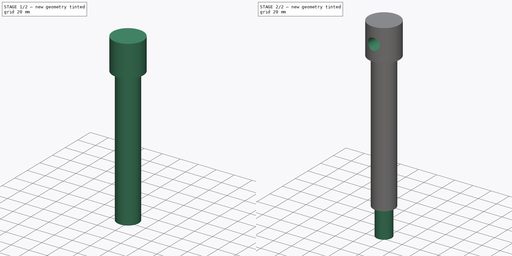
[diagram: build sequence overview — one tinted view per stage of 2, left to right]
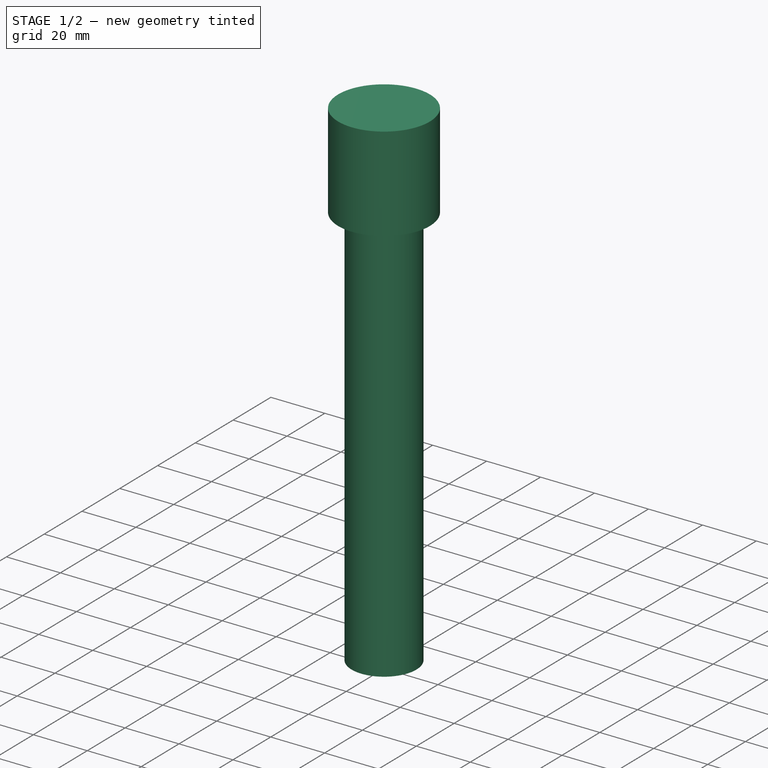
[diagram: stage 1 of 2 — iso view after this stage's code; geometry added in this stage tinted green]
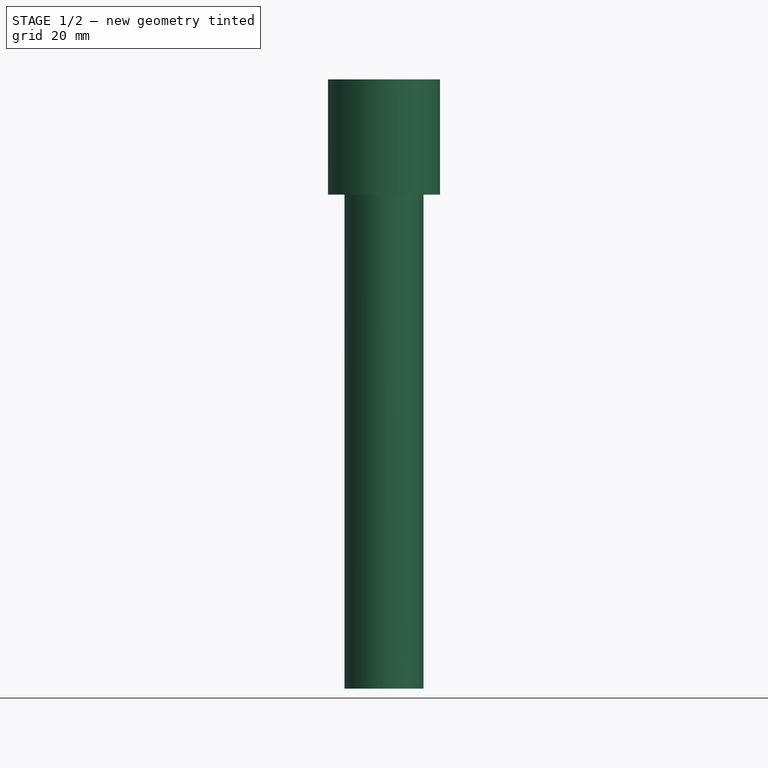
[diagram: stage 1 of 2 — front view after this stage's code; geometry added in this stage tinted green]
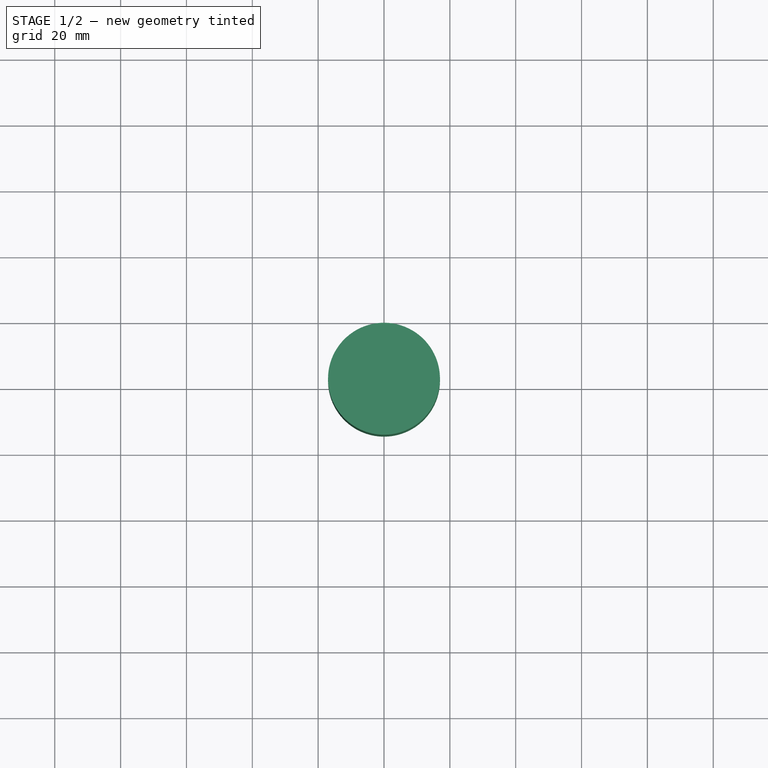
[diagram: stage 1 of 2 — top view after this stage's code; geometry added in this stage tinted green]
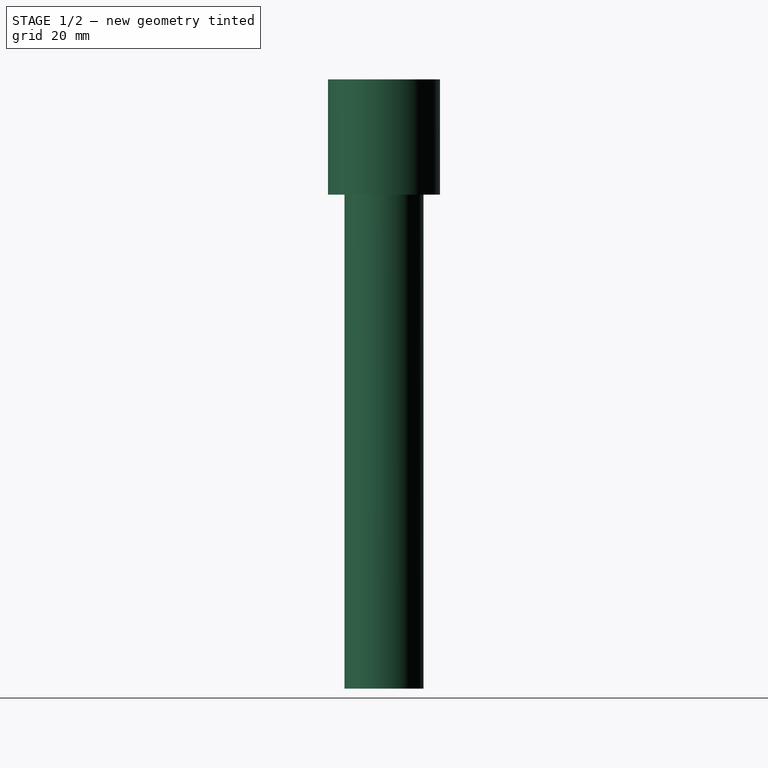
[diagram: stage 1 of 2 — right view after this stage's code; geometry added in this stage tinted green]
FCSTD DOCUMENT  (FreeCAD 0.18R4 (GitTag))
Label: part 5
License: All rights reserved
LicenseURL: http://en.wikipedia.org/wiki/All_rights_reserved
objects: Sketcher::SketchObject×4, PartDesign::Pad×3, PartDesign::Plane×1, PartDesign::Pocket×1, PartDesign::Body×1
note: 14 computed .brp shape members not serialized (recipe doc carries the construction recipe); baked Part::Feature solids carry a one-line shape summary decoded from their .brp

FEATURE [Sketcher::SketchObject] Sketch
  MapMode = 5
  Support = -> [XY_Plane]
  sketch-geometry (1):
    g0: Circle CenterX=0 CenterY=0 CenterZ=0 NormalX=0 NormalY=0 NormalZ=1 AngleXU=0 Radius=17
  constraints (2):
    c: Coincident(g0,g-1)
    c: Radius(g0) = 17
FEATURE [PartDesign::Pad] Pad
  Length = 35
  Length2 = 100
  Profile = -> Sketch
  Type = 0
FEATURE [Sketcher::SketchObject] Sketch001
  MapMode = 5
  Placement = pos=(0,0,0) rot=(1,0,0;3.14159rad)
  Support = -> [Pad]
  sketch-geometry (1):
    g0: Circle CenterX=0 CenterY=0 CenterZ=0 NormalX=0 NormalY=0 NormalZ=1 AngleXU=0 Radius=12
  constraints (2):
    c: Coincident(g0,g-1)
    c: Radius(g0) = 12
FEATURE [PartDesign::Pad] Pad001
  BaseFeature = -> Pad
  Length = 150
  Length2 = 100
  Profile = -> Sketch001
  Type = 0
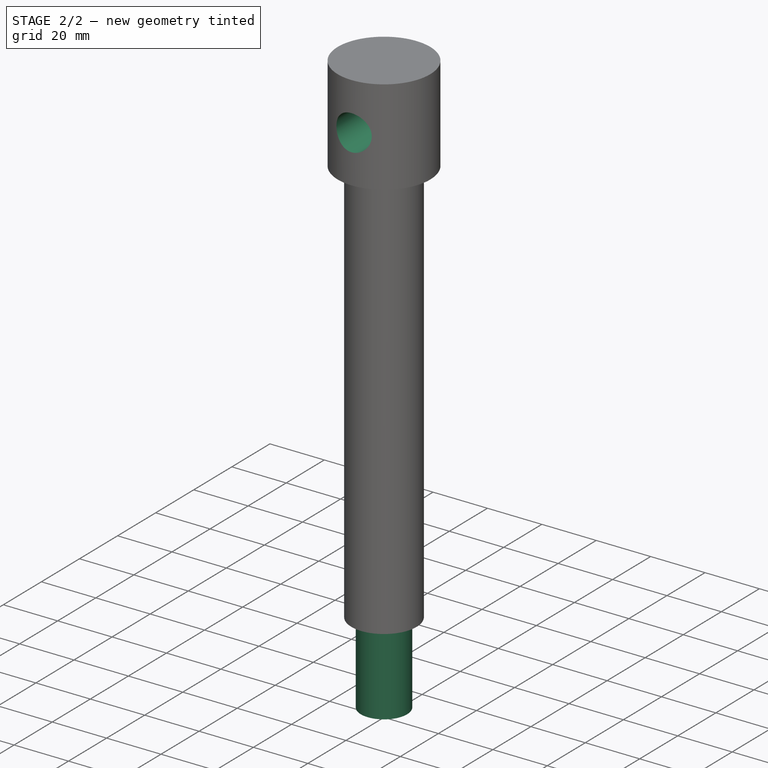
[diagram: stage 2 of 2 — iso view after this stage's code; geometry added in this stage tinted green]
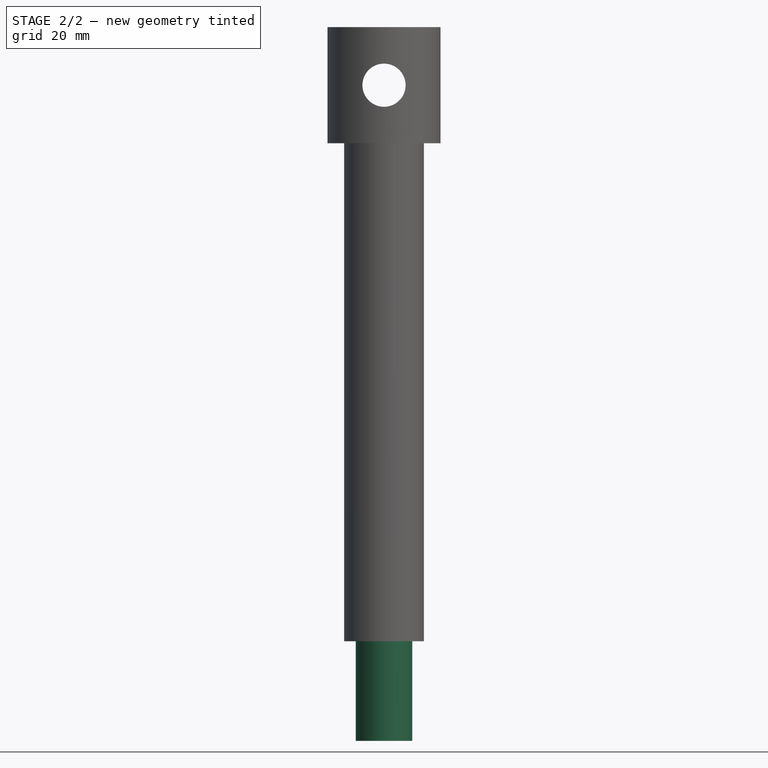
[diagram: stage 2 of 2 — front view after this stage's code; geometry added in this stage tinted green]
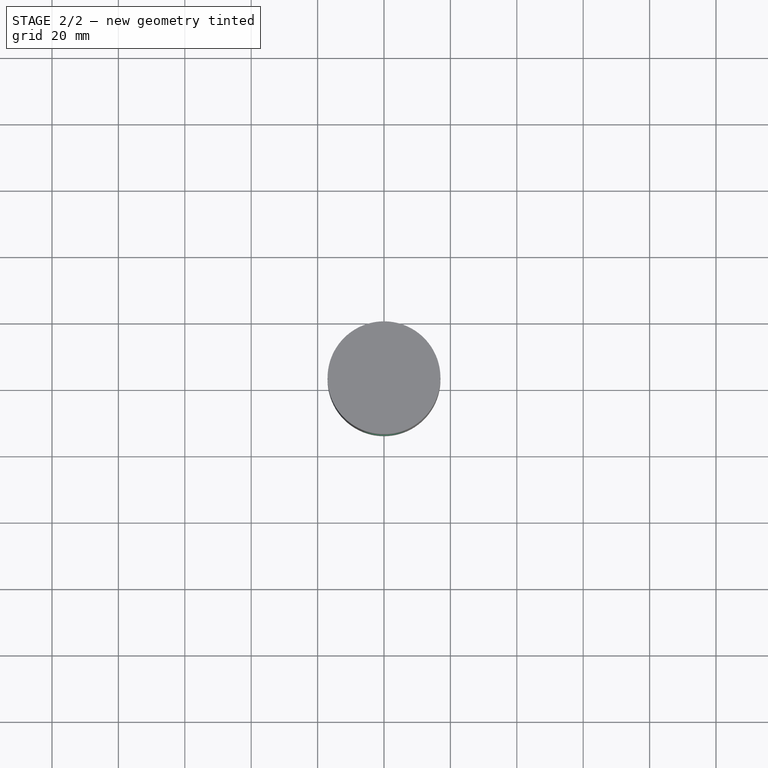
[diagram: stage 2 of 2 — top view after this stage's code; geometry added in this stage tinted green]
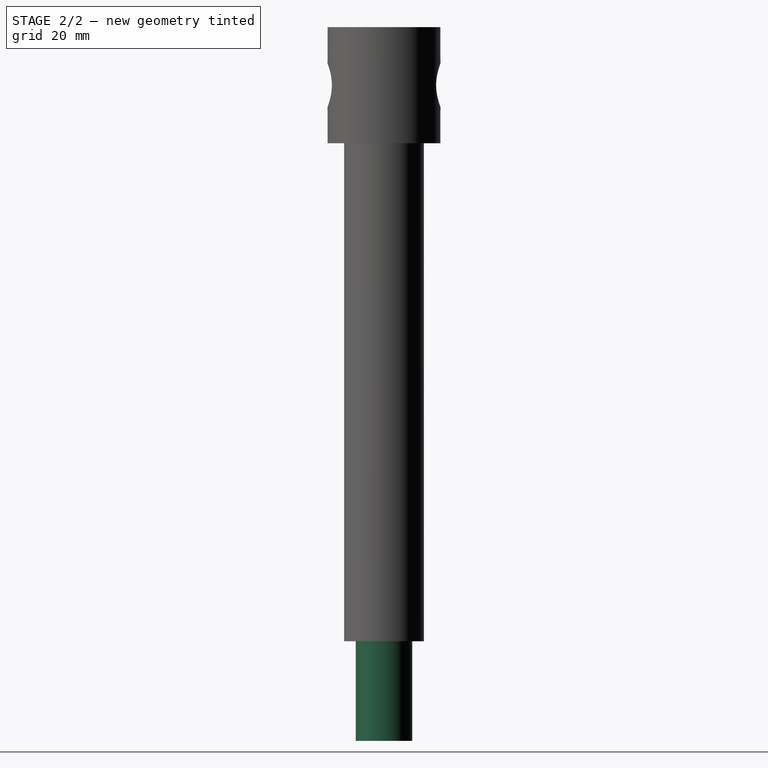
[diagram: stage 2 of 2 — right view after this stage's code; geometry added in this stage tinted green]
FEATURE [Sketcher::SketchObject] Sketch002
  MapMode = 5
  Placement = pos=(0,0,-150) rot=(1,0,0;3.14159rad)
  Support = -> [Pad001]
  sketch-geometry (1):
    g0: Circle CenterX=0 CenterY=0 CenterZ=0 NormalX=0 NormalY=0 NormalZ=1 AngleXU=0 Radius=8.5
  constraints (2):
    c: Coincident(g0,g-1)
    c: Radius(g0) = 8.5
FEATURE [PartDesign::Pad] Pad002
  BaseFeature = -> Pad001
  Length = 30
  Length2 = 100
  Profile = -> Sketch002
  Type = 0
FEATURE [PartDesign::Plane] DatumPlane
  AttachmentOffset = pos=(0,0,0) rot=(1,0,0;1.5708rad)
  Length = 51.0997
  MapMode = 5
  Placement = pos=(0,0,35) rot=(1,0,0;1.5708rad)
  ResizeMode = 0
  Support = -> [Pad002]
  Width = 232.1
FEATURE [Sketcher::SketchObject] Sketch003
  MapMode = 5
  Placement = pos=(0,0,35) rot=(1,0,0;1.5708rad)
  Support = -> [DatumPlane]
  sketch-geometry (1):
    g0: Circle CenterX=0 CenterY=-17.5 CenterZ=0 NormalX=0 NormalY=0 NormalZ=1 AngleXU=0 Radius=6.5
  constraints (3):
    c: DistanceX(g0,g-1) = 0
    c: DistanceY(g0,g-1) = 17.5
    c: Radius(g0) = 6.5
FEATURE [PartDesign::Pocket] Pocket
  BaseFeature = -> Pad002
  Length = 34
  Length2 = 100
  Midplane = true
  Profile = -> Sketch003
  Type = 0
FEATURE [PartDesign::Body] Body
  Group = -> [Sketch,Pad,Sketch001,Pad001,Sketch002,Pad002,DatumPlane,Sketch003,Pocket]
  Origin = -> Origin
  Tip = -> Pocket
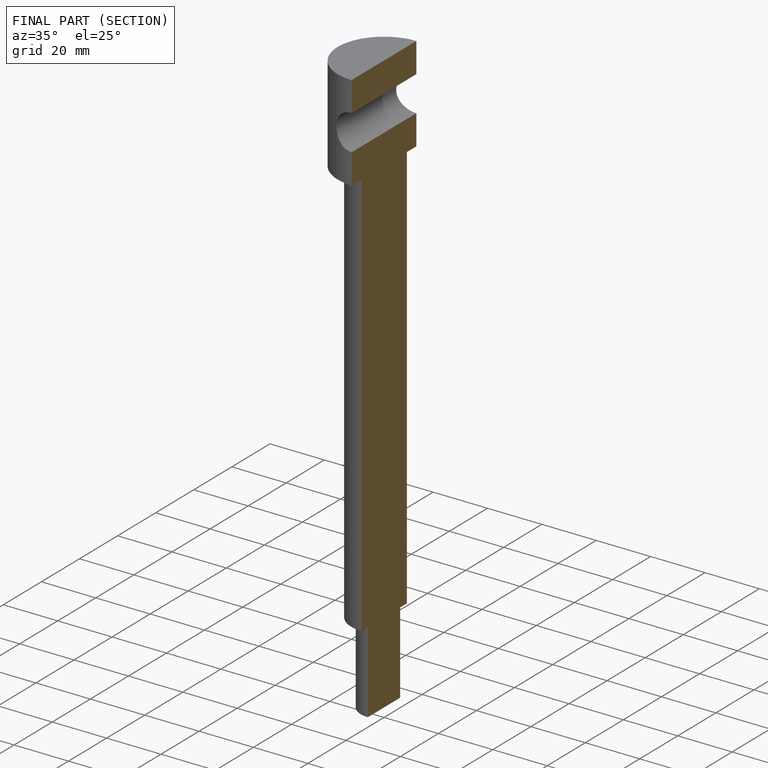
[diagram: finished part — half-section view (interior)]
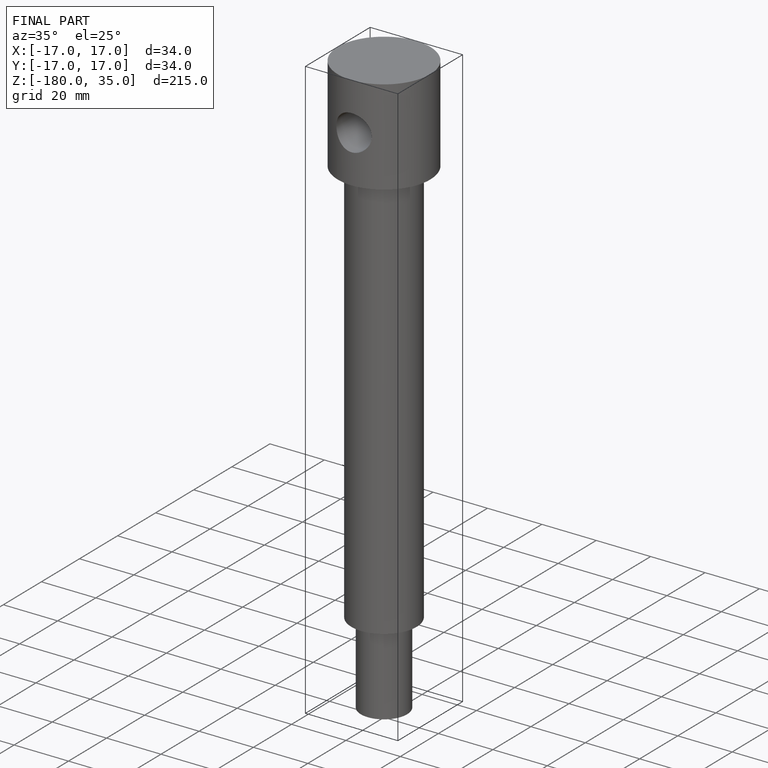
[diagram: finished part — iso view with bounding-box wireframe]
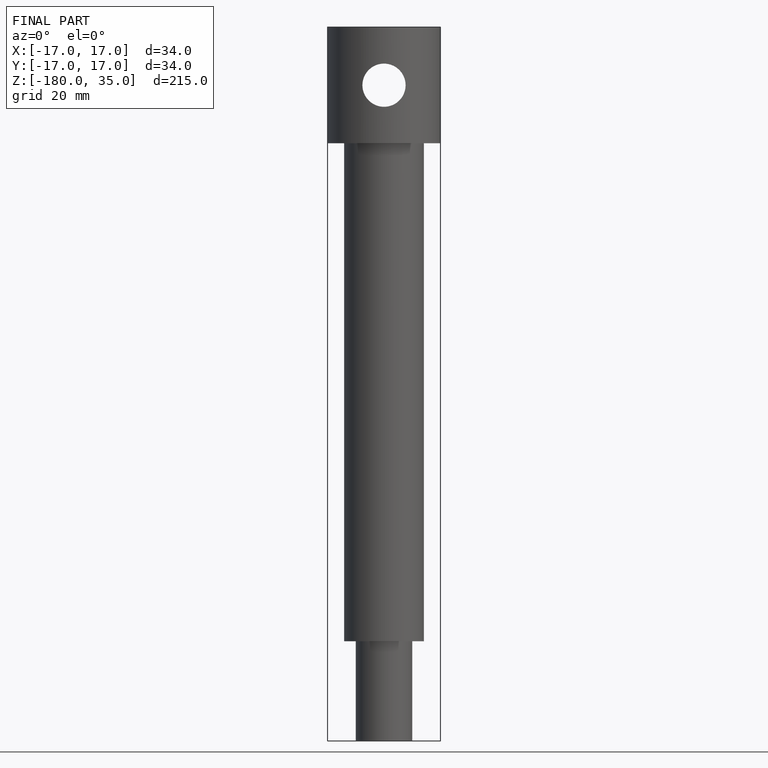
[diagram: finished part — front view with bounding-box wireframe]
